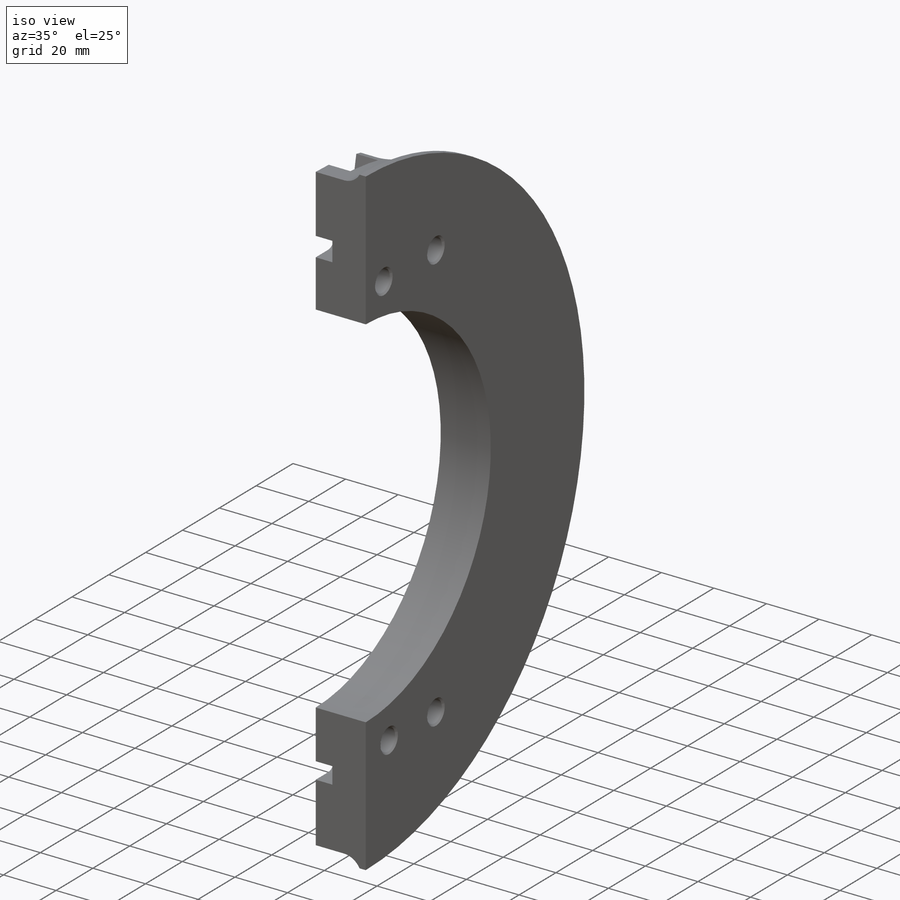
[diagram: iso view]
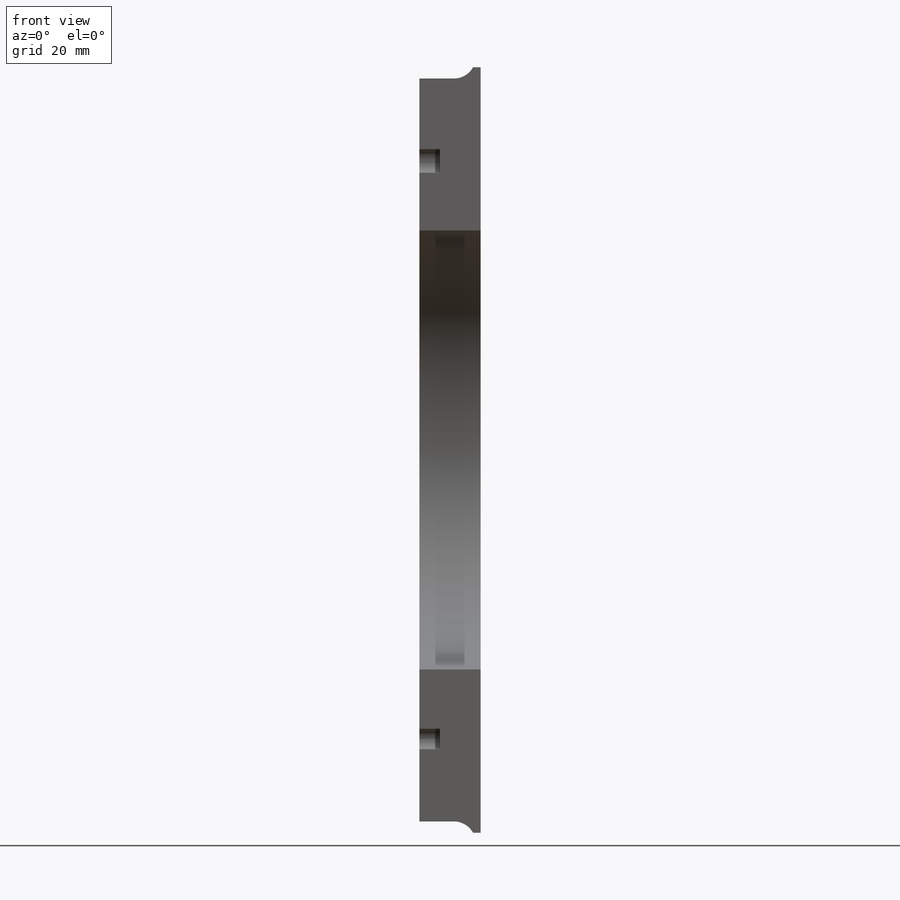
[diagram: front view]
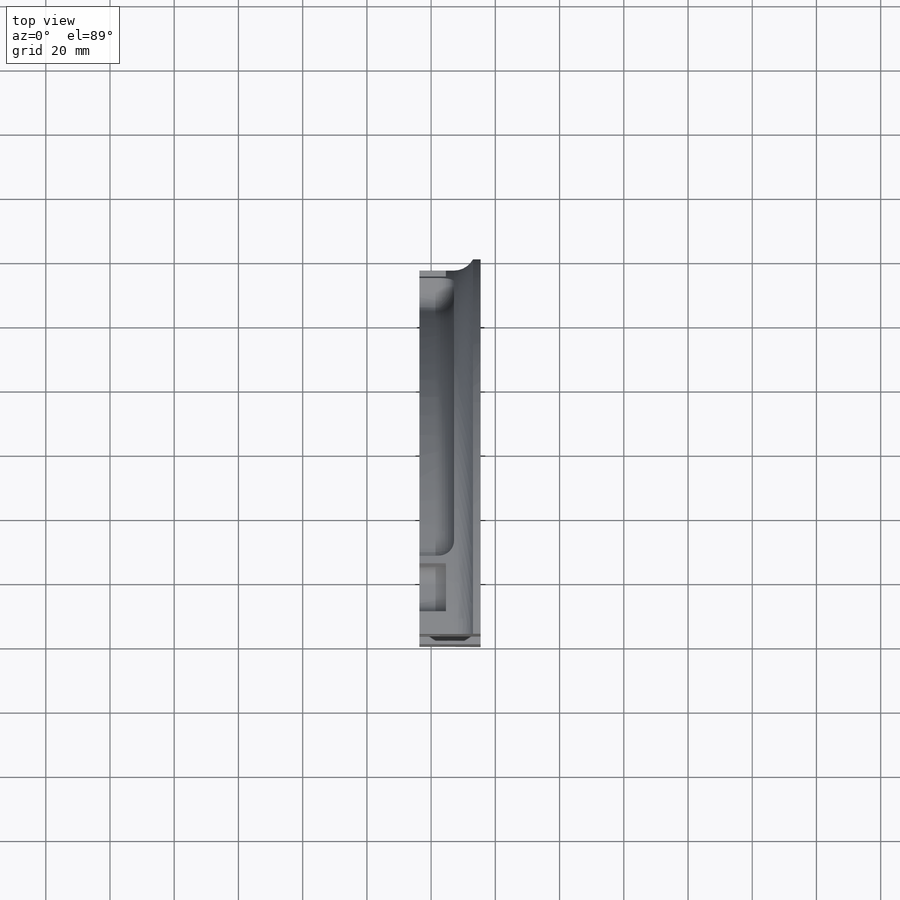
[diagram: top view]
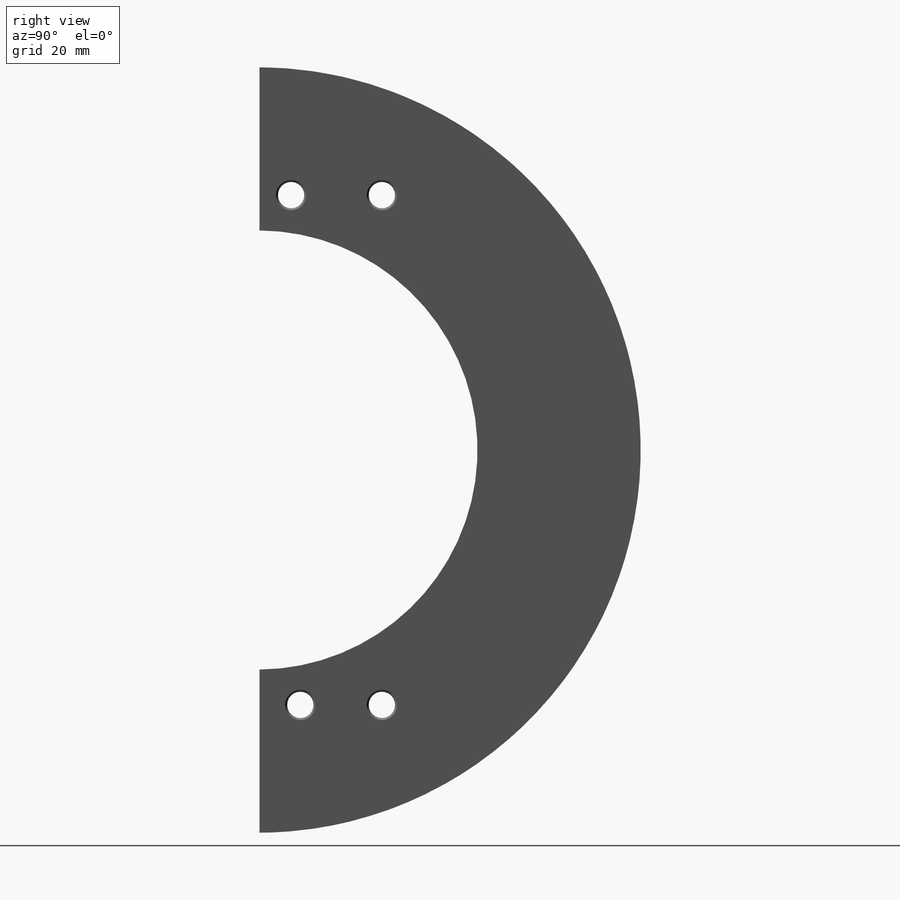
[diagram: right view]
SOLIDWORKS PART (.sldprt)
format: sldprt  version: not decoded by parser v0  size: 1,452,032 bytes
history: native  units: mm
features: sketch x10, cut_extrude x6, plane x3, fillet x3, material x1, extrude x1, hole x1 + 2 further entries (+12 scaffold rows collapsed)
feature tree (39):
  scaffold x12  (default folders/planes/origin — collapsed)
  material  "Material <not specified>"
  plane  "Plane1"
  plane  "Plane2"
  plane  "Plane3"
  "Axis2"
  "Axis3"
  sketch  "Sketch1"  dims[c1.D9=3.0mm c1.D10=4.0mm c1.D2=6.7625mm c1.D7=4.5mm c1.D1=2.5mm c2.D2=~42.935967mm c3.D2=50.0deg c3.D3=~91.177867mm c4.D2=~100.269623mm c5.D2=~62.654091deg c5.D3=191.2625mm c5.D4=~104.165277mm c5.D5=125.0mm c5.D6=~60.834723mm c6.D4=188.0mm c6.D6=~46.36475mm c6.D1=~5.35288mm c6.D7=14.0mm c7.D1=6.5mm c7.D8=110.0mm c8.D1=~193.33025mm c8.D11=~14.60465mm c8.D6=~57.012213mm c9.D1=~14.686707mm c9.D5=117.5mm c9.D7=1.0mm c10.D5=~120.108474mm c10.D7=~74.340574mm c11.D7=~60.301597deg c11.D1=191.7625mm c11.D3=~57.012213mm c11.D4=~80.17119mm c12.D4=~61.150849deg c12.D5=~3.646559mm c12.D6=115.675mm c12.D7=188.0mm c12.D8=~7.106883mm c12.D2=3.5mm c12.D3=25.4mm c13.D2=1.5mm c13.D1=180.0deg c13.D3=6.35mm c13.D4=1.0mm c13.D7=0.0mm]
  sketch  "Sketch81"  dims[D1=0.5mm]
  cut_extrude  "Extrude1"  [1 undecoded]
  sketch  "Sketch82"  dims[D1=50.8mm]
  extrude  "Boss-Extrude1"  [1 undecoded]
  sketch  "Sketch83"  dims[D1=0.0mm]
  cut_extrude  "Cut-Extrude1"  Depth=19.05mm
  hole  "5/16 Clearance Hole1"  Diameter=8.2042mm Depth=19.05mm
  sketch  "Sketch85"  dims[D1=158.75mm D2=12.7mm D3=25.4mm]
  sketch  "Sketch84"  dims[hole-wizard template sketch: 54 standard entries collapsed; hole parameters above]
  sketch  "Sketch86"  dims[c1.D11=~215.339795mm c1.D1=~256.381858mm c2.D1=3.758deg c2.D2=~256.381858mm c3.D2=11.242deg c3.D3=~256.381858mm c4.D3=12.459deg c4.D4=~256.381858mm c5.D4=92.541deg c5.D5=~256.381858mm c6.D5=93.758deg c6.D6=~256.381858mm c7.D6=3.758deg c7.D7=~256.381858mm c8.D7=11.242deg c8.D8=~256.381858mm c9.D8=12.455deg c9.D9=~256.381858mm c10.D9=77.541deg c10.D10=~112.143012mm c11.D10=78.758deg c11.D11=9.525mm]
  cut_extrude  "Cut-Extrude2"  Depth=8.25mm
  sketch  "Sketch87"  dims[D1=0.0mm D2=0.0mm]
  cut_extrude  "Cut-Extrude3"  Depth=2.5034mm
  fillet  "Fillet1"  Radius=4.7625mm
  fillet  "Fillet2"  Radius=4.7625mm
  sketch  "Sketch88"  dims[D1=10.0mm D2=~6.35254mm D3=90.0mm]
  cut_extrude  "Cut-Extrude4"  Depth=6.35mm
  sketch  "Sketch89"  dims[D1=0.5mm]
  cut_extrude  "Cut-Extrude5"  [1 undecoded]
  fillet  "Fillet3"  Radius=3.175mm
decode coverage: 18 of 21 modeling features carry decoded parameters; 2 rows unclassified (native names shown)
note: ~ marks probable driven/reference dimensions
note: 3 parameter values undecoded
summary: no parameter record found for 3 features
note: suppression state not decoded; provenance and decode notes live in map.json
